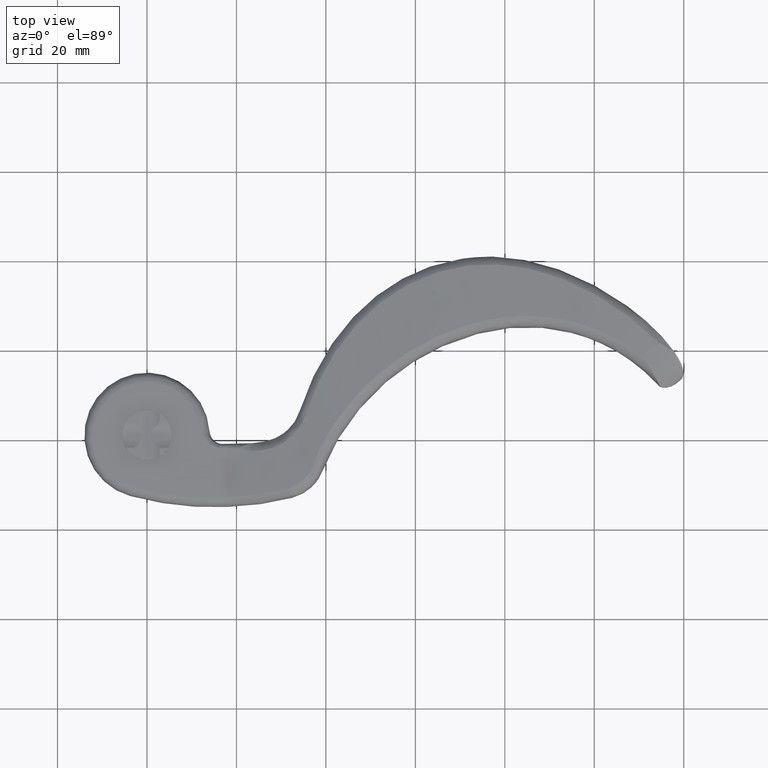
[diagram: clean part render]
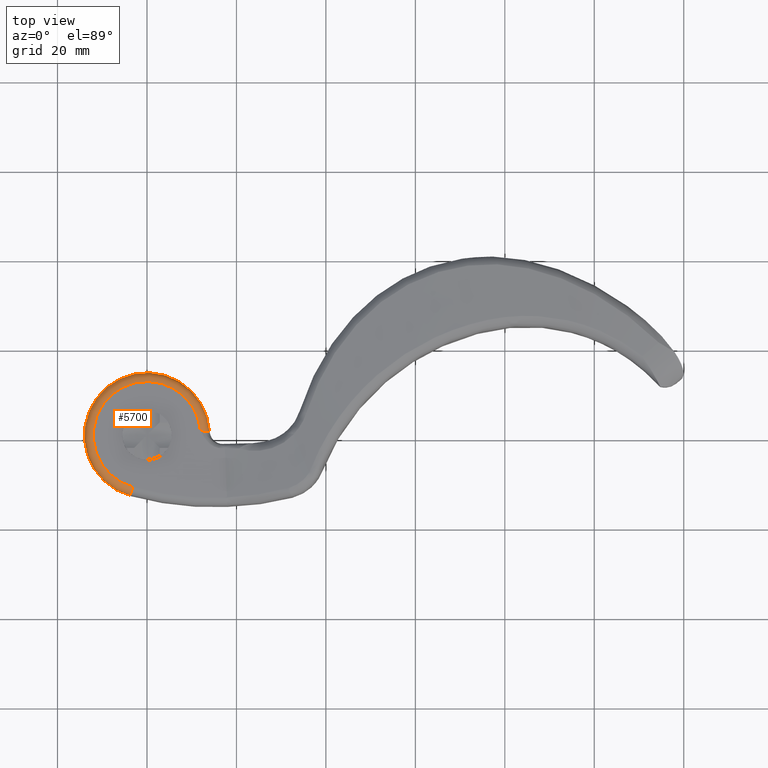
[diagram: same view with one face highlighted and labeled with its STEP entity id]
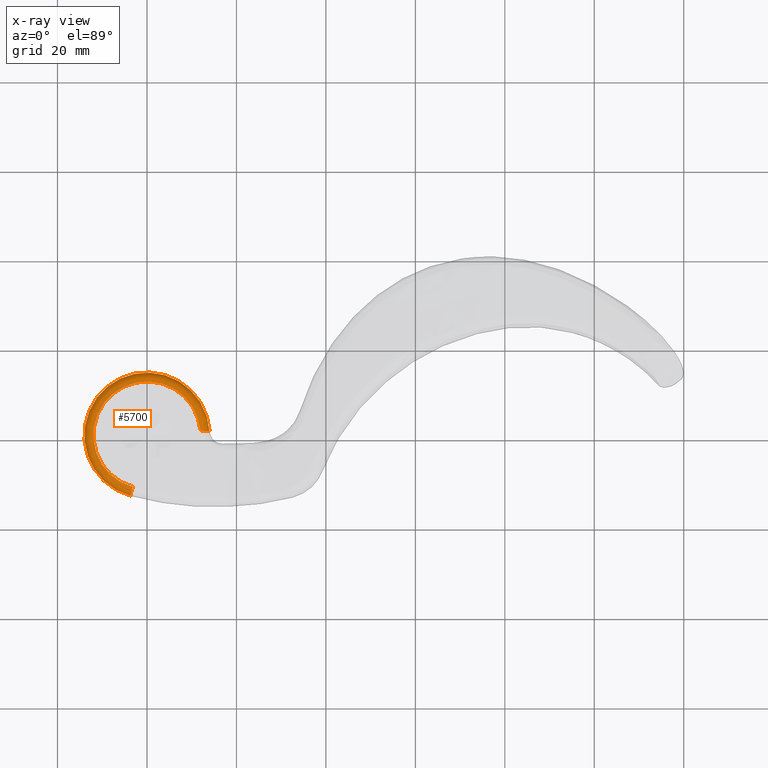
[diagram: x-ray of the same camera — body ghosted, the highlighted face saturated]
A machine part, top view. The second image highlights one B-rep face of the part: STEP entity #5700.
The next image is the same camera in x-ray: the body ghosted, the highlighted face saturated — about 0% of this face is hidden behind the body in this view.
In plain terms, the highlighted toroidal blend (fillet) surface has major radius 12 mm and minor (blend) radius 2 mm.
Its self-contained STEP definition (entity closure, byte-faithful):
#665 = CARTESIAN_POINT ( 'NONE',  ( -3.189420463017758056, -11.56838783539365600, 6.999999999999999112 ) ) ;
#734 = VERTEX_POINT ( 'NONE', #5357 ) ;
#954 = CARTESIAN_POINT ( 'NONE',  ( 13.70323882573654295, 0.8590551929771130801, 8.011969026811318173 ) ) ;
#1153 = CIRCLE ( 'NONE', #11332, 14.00000000000000178 ) ;
#1569 = ORIENTED_EDGE ( 'NONE', *, *, #3248, .F. ) ;
#1927 = CARTESIAN_POINT ( 'NONE',  ( 12.47234715013759754, 0.9593476155577762565, 8.951320862062537742 ) ) ;
#2106 = CARTESIAN_POINT ( 'NONE',  ( 13.90822259530474447, 0.8598886186531630171, 7.523451448025116228 ) ) ;
#3039 = DIRECTION ( 'NONE',  ( 0.2657850385848131158, 0.9640323196161368902, 0.000000000000000000 ) ) ;
#3167 = CARTESIAN_POINT ( 'NONE',  ( 13.97349654253081574, 0.8610426097932073475, 7.133644143967444506 ) ) ;
#3248 = EDGE_CURVE ( 'NONE', #734, #13380, #9891, .T. ) ;
#3587 = CARTESIAN_POINT ( 'NONE',  ( -3.720990540187389506, -13.49645247462591513, 6.999999999999999112 ) ) ;
#3994 = CARTESIAN_POINT ( 'NONE',  ( 13.46819389931074440, 0.8639336787044178401, 8.334035240007702683 ) ) ;
#4117 = CARTESIAN_POINT ( 'NONE',  ( 13.97349654253081219, 0.8610426097932100120, 6.999999999999999112 ) ) ;
#4285 = CARTESIAN_POINT ( 'NONE',  ( 13.97349654253081219, 0.8610426097932100120, 6.999999999999999112 ) ) ;
#4448 = EDGE_CURVE ( 'NONE', #734, #10454, #9343, .T. ) ;
#4749 = DIRECTION ( 'NONE',  ( 0.000000000000000000, 0.000000000000000000, 1.000000000000000000 ) ) ;
#4845 = DIRECTION ( 'NONE',  ( 1.000000000000000000, 0.000000000000000000, 0.000000000000000000 ) ) ;
#4946 = AXIS2_PLACEMENT_3D ( 'NONE', #7117, #8271, #13817 ) ;
#5254 = CARTESIAN_POINT ( 'NONE',  ( 0.000000000000000000, 0.000000000000000000, 6.999999999999999112 ) ) ;
#5340 = CARTESIAN_POINT ( 'NONE',  ( 13.76610234065632810, 0.8589096100216029317, 7.896195477707840027 ) ) ;
#5357 = CARTESIAN_POINT ( 'NONE',  ( 11.95165838545281645, 1.076039886544837287, 9.000000000000000000 ) ) ;
#5485 = CARTESIAN_POINT ( 'NONE',  ( 13.86882375937298306, 0.8593245647354492700, 7.651870434855847947 ) ) ;
#5700 = ADVANCED_FACE ( 'NONE', ( #12811 ), #9332, .T. ) ;
#5761 = CARTESIAN_POINT ( 'NONE',  ( 0.000000000000000000, 0.000000000000000000, 6.999999999999999112 ) ) ;
#6569 = AXIS2_PLACEMENT_3D ( 'NONE', #665, #8621, #3039 ) ;
#7117 = CARTESIAN_POINT ( 'NONE',  ( 0.000000000000000000, 0.000000000000000000, 9.000000000000000000 ) ) ;
#7564 = DIRECTION ( 'NONE',  ( 1.000000000000000000, 0.000000000000000000, 0.000000000000000000 ) ) ;
#7646 = CARTESIAN_POINT ( 'NONE',  ( 13.55461406358886478, 0.8615418235625815768, 8.230790507404693201 ) ) ;
#7860 = ORIENTED_EDGE ( 'NONE', *, *, #9069, .F. ) ;
#8271 = DIRECTION ( 'NONE',  ( 0.000000000000000000, 0.000000000000000000, 1.000000000000000000 ) ) ;
#8563 = CARTESIAN_POINT ( 'NONE',  ( 12.21011478048365895, 1.008113964215483493, 9.000000000000001776 ) ) ;
#8615 = CARTESIAN_POINT ( 'NONE',  ( 12.95776520755529582, 0.8942807988761091176, 8.757756662572123929 ) ) ;
#8621 = DIRECTION ( 'NONE',  ( 0.9640323196161368902, -0.2657850385848129493, 0.000000000000000000 ) ) ;
#9069 = EDGE_CURVE ( 'NONE', #13380, #12901, #10014, .T. ) ;
#9107 = EDGE_CURVE ( 'NONE', #12901, #10454, #1153, .T. ) ;
#9332 = TOROIDAL_SURFACE ( 'NONE', #9544, 12.00000000000000178, 2.000000000000000000 ) ;
#9343 = B_SPLINE_CURVE_WITH_KNOTS ( 'NONE', 3,
 ( #9650, #8563, #1927, #8615, #14210, #3994, #7646, #954, #5340, #5485, #2106, #11013, #3167, #4285 ),
 .UNSPECIFIED., .F., .F.,
 ( 4, 2, 2, 2, 2, 2, 4 ),
 ( 3.529906531158615134E-18, 0.0007964840045752511746, 0.001592968009150498663, 0.001991210011438120618, 0.002389452013725743007, 0.002787694016013364529, 0.003185936018300986917 ),
 .UNSPECIFIED. ) ;
#9544 = AXIS2_PLACEMENT_3D ( 'NONE', #5761, #4749, #4845 ) ;
#9650 = CARTESIAN_POINT ( 'NONE',  ( 11.95165838545281645, 1.076039886544837287, 9.000000000000000000 ) ) ;
#9655 = DIRECTION ( 'NONE',  ( -0.000000000000000000, -0.000000000000000000, -1.000000000000000000 ) ) ;
#9657 = EDGE_LOOP ( 'NONE', ( #1569, #12494, #11326, #7860 ) ) ;
#9891 = CIRCLE ( 'NONE', #4946, 12.00000000000000178 ) ;
#10014 = CIRCLE ( 'NONE', #6569, 1.999999999999999334 ) ;
#10454 = VERTEX_POINT ( 'NONE', #4117 ) ;
#10757 = CARTESIAN_POINT ( 'NONE',  ( -3.189420463017758056, -11.56838783539365600, 9.000000000000000000 ) ) ;
#11013 = CARTESIAN_POINT ( 'NONE',  ( 13.96022877167881404, 0.8607438340234199181, 7.265026802219693991 ) ) ;
#11326 = ORIENTED_EDGE ( 'NONE', *, *, #9107, .F. ) ;
#11332 = AXIS2_PLACEMENT_3D ( 'NONE', #5254, #9655, #7564 ) ;
#12494 = ORIENTED_EDGE ( 'NONE', *, *, #4448, .T. ) ;
#12811 = FACE_OUTER_BOUND ( 'NONE', #9657, .T. ) ;
#12901 = VERTEX_POINT ( 'NONE', #3587 ) ;
#13380 = VERTEX_POINT ( 'NONE', #10757 ) ;
#13817 = DIRECTION ( 'NONE',  ( 1.000000000000000000, 0.000000000000000000, 0.000000000000000000 ) ) ;
#14210 = CARTESIAN_POINT ( 'NONE',  ( 13.18554681860300803, 0.8770605219852058987, 8.610495553038708394 ) ) ;